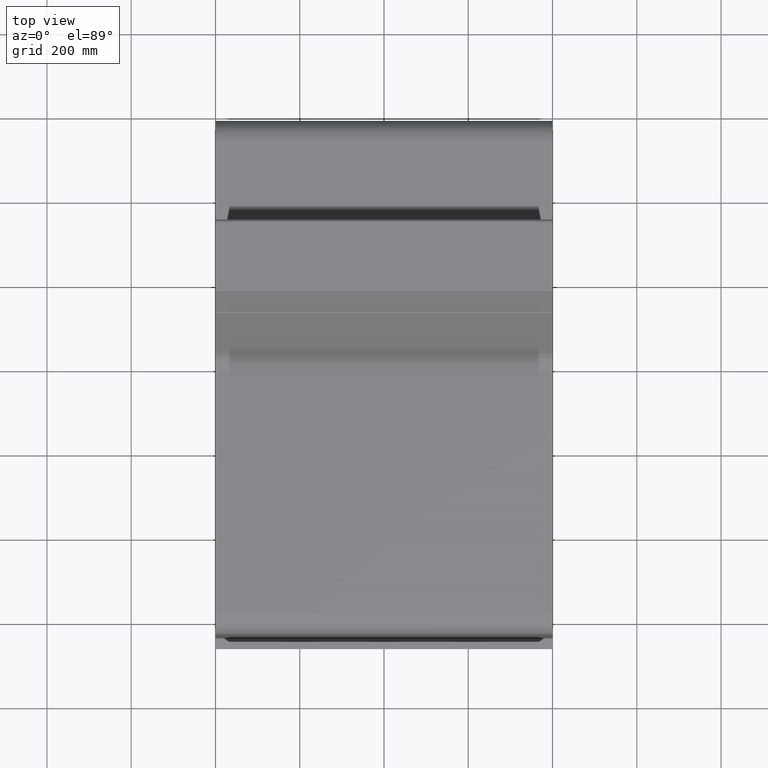
[diagram: clean part render]
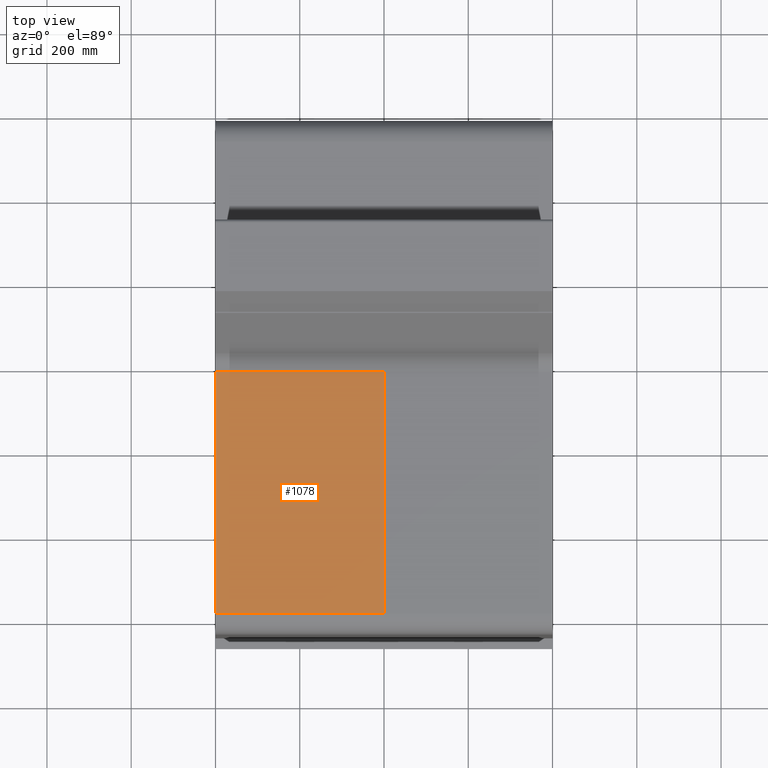
[diagram: same view with one face highlighted and labeled with its STEP entity id]
A machine part, top view. The second image highlights one B-rep face of the part: STEP entity #1078.
In plain terms, the highlighted planar face has unit normal (0, 0, 1).
Its self-contained STEP definition (entity closure, byte-faithful):
#1020=CARTESIAN_POINT('',(400.0,-785.00000000000011,557.5));
#1021=VERTEX_POINT('',#1020);
#1029=CARTESIAN_POINT('',(0.0,-785.00000000000011,557.5));
#1030=VERTEX_POINT('',#1029);
#1031=CARTESIAN_POINT('',(0.0,-785.00000000000011,557.5));
#1032=DIRECTION('',(1.0,0.0,0.0));
#1033=VECTOR('',#1032,400.0);
#1034=LINE('',#1031,#1033);
#1035=EDGE_CURVE('',#1030,#1021,#1034,.T.);
#1048=CARTESIAN_POINT('',(0.0,-785.00000000000011,557.5));
#1049=DIRECTION('',(0.0,0.0,1.0));
#1050=DIRECTION('',(1.0,0.0,0.0));
#1051=AXIS2_PLACEMENT_3D('',#1048,#1049,#1050);
#1052=PLANE('',#1051);
#1053=CARTESIAN_POINT('',(400.0,-212.00700620289984,557.5));
#1054=VERTEX_POINT('',#1053);
#1055=CARTESIAN_POINT('',(400.0,-785.00000000000023,557.5));
#1056=DIRECTION('',(0.0,1.0,0.0));
#1057=VECTOR('',#1056,572.99299379710033);
#1058=LINE('',#1055,#1057);
#1059=EDGE_CURVE('',#1021,#1054,#1058,.T.);
#1060=ORIENTED_EDGE('',*,*,#1059,.T.);
#1061=CARTESIAN_POINT('',(0.0,-212.00700620289984,557.5));
#1062=VERTEX_POINT('',#1061);
#1063=CARTESIAN_POINT('',(0.0,-212.00700620289984,557.5));
#1064=DIRECTION('',(1.0,0.0,0.0));
#1065=VECTOR('',#1064,400.0);
#1066=LINE('',#1063,#1065);
#1067=EDGE_CURVE('',#1062,#1054,#1066,.T.);
#1068=ORIENTED_EDGE('',*,*,#1067,.F.);
#1069=CARTESIAN_POINT('',(0.0,-212.00700620289984,557.5));
#1070=DIRECTION('',(0.0,-1.0,0.0));
#1071=VECTOR('',#1070,572.99299379710033);
#1072=LINE('',#1069,#1071);
#1073=EDGE_CURVE('',#1062,#1030,#1072,.T.);
#1074=ORIENTED_EDGE('',*,*,#1073,.T.);
#1075=ORIENTED_EDGE('',*,*,#1035,.T.);
#1076=EDGE_LOOP('',(#1060,#1068,#1074,#1075));
#1077=FACE_OUTER_BOUND('',#1076,.T.);
#1078=ADVANCED_FACE('',(#1077),#1052,.T.);